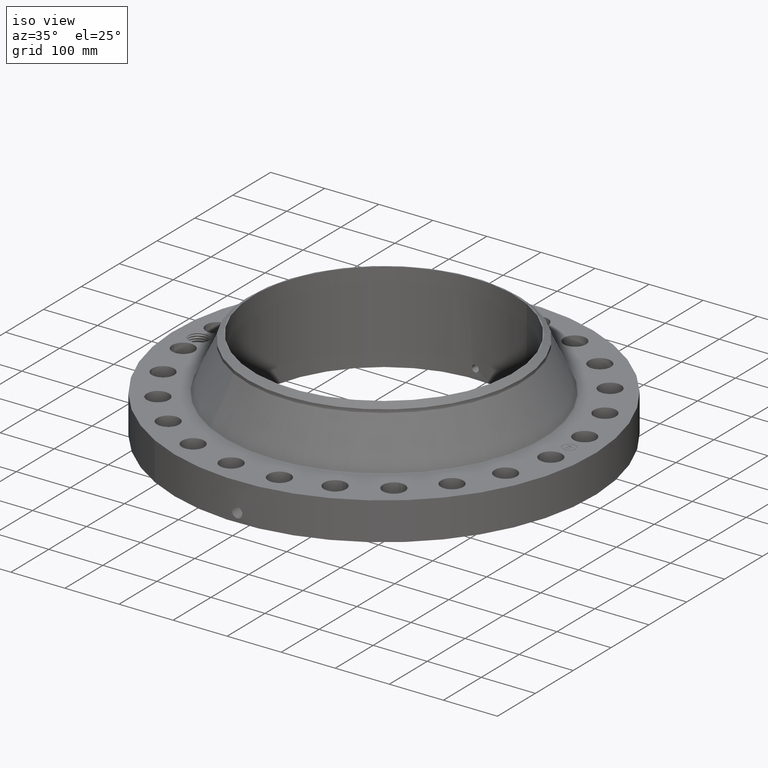
[diagram: clean part render]
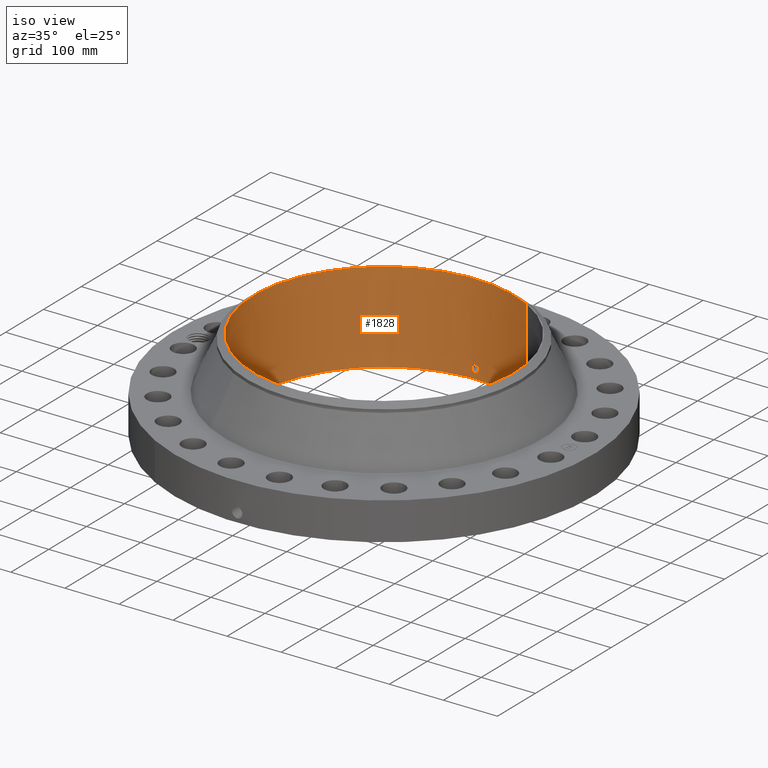
[diagram: same view with one face highlighted and labeled with its STEP entity id]
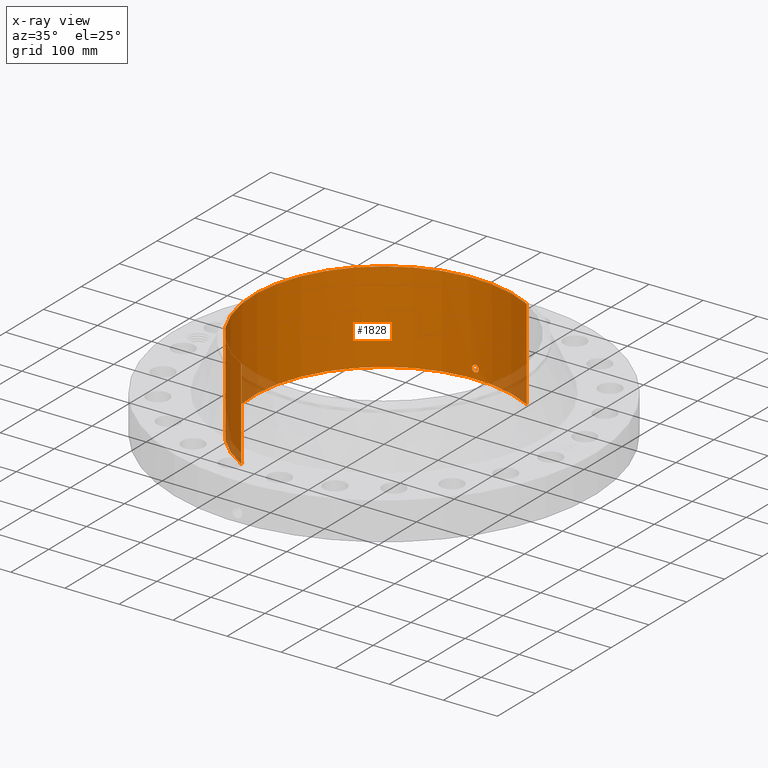
[diagram: x-ray of the same camera — body ghosted, the highlighted face saturated]
A machine part, iso view. The second image highlights one B-rep face of the part: STEP entity #1828.
The next image is the same camera in x-ray: the body ghosted, the highlighted face saturated — about 5% of this face is hidden behind the body in this view.
In plain terms, the highlighted cylindrical surface (partial cylindrical patch) has radius 241.3 mm, axis along (0, 0, -1).
Its self-contained STEP definition (entity closure, byte-faithful):
#262=AXIS2_PLACEMENT_3D('Circle Axis2P3D',#260,#261,$) ;
#1705=AXIS2_PLACEMENT_3D('Cylinder Axis2P3D',#1702,#1703,#1704) ;
#1777=AXIS2_PLACEMENT_3D('Circle Axis2P3D',#1775,#1776,$) ;
#255=CARTESIAN_POINT('Vertex',(4.55454261676,8.33703433799,0.250000000001)) ;
#257=CARTESIAN_POINT('Vertex',(-4.55454261676,-8.33703433799,0.250000000001)) ;
#260=CARTESIAN_POINT('Axis2P3D Location',(0.,0.,0.250000000001)) ;
#1702=CARTESIAN_POINT('Axis2P3D Location',(0.,0.,3.56000000001)) ;
#1711=CARTESIAN_POINT('Vertex',(4.55454261676,8.33703433799,6.87000000003)) ;
#1713=CARTESIAN_POINT('Vertex',(-4.55454261676,-8.33703433799,6.87000000003)) ;
#1716=CARTESIAN_POINT('Line Origine',(4.55454261676,8.33703433799,3.56000000001)) ;
#1721=CARTESIAN_POINT('Line Origine',(-4.55454261676,-8.33703433799,3.56000000001)) ;
#1775=CARTESIAN_POINT('Axis2P3D Location',(0.,0.,6.87000000003)) ;
#1787=CARTESIAN_POINT('Control Point',(0.219395640473,9.4974662702,1.05985638466)) ;
#1788=CARTESIAN_POINT('Control Point',(0.194442936004,9.49804268863,1.10553200381)) ;
#1789=CARTESIAN_POINT('Control Point',(0.157604874733,9.49881167245,1.14471210687)) ;
#1790=CARTESIAN_POINT('Control Point',(0.111106986324,9.49955955235,1.17324351809)) ;
#1791=CARTESIAN_POINT('Control Point',(0.0336717783069,9.50015458293,1.19588281263)) ;
#1792=CARTESIAN_POINT('Control Point',(-0.0446730370316,9.49994894621,1.18805610377)) ;
#1793=CARTESIAN_POINT('Control Point',(-0.0703033492359,9.49978931029,1.18204313534)) ;
#1794=CARTESIAN_POINT('Control Point',(-0.143960170587,9.49908388344,1.15420983011)) ;
#1795=CARTESIAN_POINT('Control Point',(-0.203248205459,9.49793246426,1.09949287886)) ;
#1796=CARTESIAN_POINT('Control Point',(-0.232212656325,9.4971773108,1.05325204763)) ;
#1797=CARTESIAN_POINT('Control Point',(-0.255841020193,9.49655659169,0.975105963687)) ;
#1798=CARTESIAN_POINT('Control Point',(-0.24828187603,9.49675500838,0.895743006064)) ;
#1799=CARTESIAN_POINT('Control Point',(-0.242048121009,9.49692100883,0.869181965434)) ;
#1800=CARTESIAN_POINT('Control Point',(-0.232314918729,9.4971678292,0.843792195572)) ;
#1801=CARTESIAN_POINT('Control Point',(-0.219395640473,9.4974662702,0.820143615352)) ;
#1802=CARTESIAN_POINT('Vertex',(0.219395640473,9.4974662702,1.05985638466)) ;
#1804=CARTESIAN_POINT('Vertex',(-0.219395640473,9.4974662702,0.820143615352)) ;
#1808=CARTESIAN_POINT('Control Point',(-0.219395640473,9.4974662702,0.820143615352)) ;
#1809=CARTESIAN_POINT('Control Point',(-0.194442935991,9.49804268863,0.774467996174)) ;
#1810=CARTESIAN_POINT('Control Point',(-0.157604874696,9.49881167245,0.7352878931)) ;
#1811=CARTESIAN_POINT('Control Point',(-0.111106986378,9.49955955235,0.706756481936)) ;
#1812=CARTESIAN_POINT('Control Point',(-0.033671778336,9.50015458293,0.684117187371)) ;
#1813=CARTESIAN_POINT('Control Point',(0.0446730370291,9.49994894621,0.691943896234)) ;
#1814=CARTESIAN_POINT('Control Point',(0.0703033492343,9.49978931029,0.69795686467)) ;
#1815=CARTESIAN_POINT('Control Point',(0.14396017062,9.49908388344,0.725790169906)) ;
#1816=CARTESIAN_POINT('Control Point',(0.203248205513,9.49793246426,0.780507121194)) ;
#1817=CARTESIAN_POINT('Control Point',(0.232212656302,9.4971773108,0.826747952307)) ;
#1818=CARTESIAN_POINT('Control Point',(0.255841020172,9.49655659169,0.904894036202)) ;
#1819=CARTESIAN_POINT('Control Point',(0.248281876046,9.49675500837,0.984256993781)) ;
#1820=CARTESIAN_POINT('Control Point',(0.242048120951,9.49692100883,1.01081803472)) ;
#1821=CARTESIAN_POINT('Control Point',(0.23231491869,9.49716782921,1.03620780451)) ;
#1822=CARTESIAN_POINT('Control Point',(0.219395640473,9.4974662702,1.05985638466)) ;
#261=DIRECTION('Axis2P3D Direction',(0.,0.,-0.0393700787402)) ;
#1703=DIRECTION('Axis2P3D Direction',(0.,0.,-0.0393700787402)) ;
#1704=DIRECTION('Axis2P3D XDirection',(-0.0188750212049,-0.0345504945626,0.)) ;
#1717=DIRECTION('Vector Direction',(0.,0.,-0.0393700787402)) ;
#1722=DIRECTION('Vector Direction',(0.,0.,-0.0393700787402)) ;
#1776=DIRECTION('Axis2P3D Direction',(0.,0.,-0.0393700787402)) ;
#1718=VECTOR('Line Direction',#1717,0.0393700787402) ;
#1723=VECTOR('Line Direction',#1722,0.0393700787402) ;
#1781=ORIENTED_EDGE('',*,*,#1779,.F.) ;
#1782=ORIENTED_EDGE('',*,*,#1725,.T.) ;
#1783=ORIENTED_EDGE('',*,*,#264,.T.) ;
#1784=ORIENTED_EDGE('',*,*,#1720,.F.) ;
#1825=ORIENTED_EDGE('',*,*,#1806,.F.) ;
#1826=ORIENTED_EDGE('',*,*,#1823,.F.) ;
#1827=FACE_BOUND('',#1824,.T.) ;
#1828=ADVANCED_FACE('PartBody',(#1785,#1827),#1706,.F.) ;
#1786=B_SPLINE_CURVE_WITH_KNOTS('',5,(#1787,#1788,#1789,#1790,#1791,#1792,#1793,#1794,#1795,#1796,#1797,#1798,#1799,#1800,#1801),.UNSPECIFIED.,.F.,.U.,(6,3,3,3,6),(0.,9.34849735248,14.0229160387,23.3729561919,28.2131465092),.UNSPECIFIED.) ;
#1807=B_SPLINE_CURVE_WITH_KNOTS('',5,(#1808,#1809,#1810,#1811,#1812,#1813,#1814,#1815,#1816,#1817,#1818,#1819,#1820,#1821,#1822),.UNSPECIFIED.,.F.,.U.,(6,3,3,3,6),(0.,9.34849735724,14.0229160434,23.3729562032,28.2131465062),.UNSPECIFIED.) ;
#263=CIRCLE('generated circle',#262,9.50000000004) ;
#1778=CIRCLE('generated circle',#1777,9.50000000004) ;
#1706=CYLINDRICAL_SURFACE('generated cylinder',#1705,9.50000000004) ;
#264=EDGE_CURVE('',#258,#256,#263,.T.) ;
#1720=EDGE_CURVE('',#1712,#256,#1719,.T.) ;
#1725=EDGE_CURVE('',#1714,#258,#1724,.T.) ;
#1779=EDGE_CURVE('',#1714,#1712,#1778,.T.) ;
#1806=EDGE_CURVE('',#1803,#1805,#1786,.T.) ;
#1823=EDGE_CURVE('',#1805,#1803,#1807,.T.) ;
#1780=EDGE_LOOP('',(#1781,#1782,#1783,#1784)) ;
#1824=EDGE_LOOP('',(#1825,#1826)) ;
#1785=FACE_OUTER_BOUND('',#1780,.T.) ;
#1719=LINE('Line',#1716,#1718) ;
#1724=LINE('Line',#1721,#1723) ;
#256=VERTEX_POINT('',#255) ;
#258=VERTEX_POINT('',#257) ;
#1712=VERTEX_POINT('',#1711) ;
#1714=VERTEX_POINT('',#1713) ;
#1803=VERTEX_POINT('',#1802) ;
#1805=VERTEX_POINT('',#1804) ;